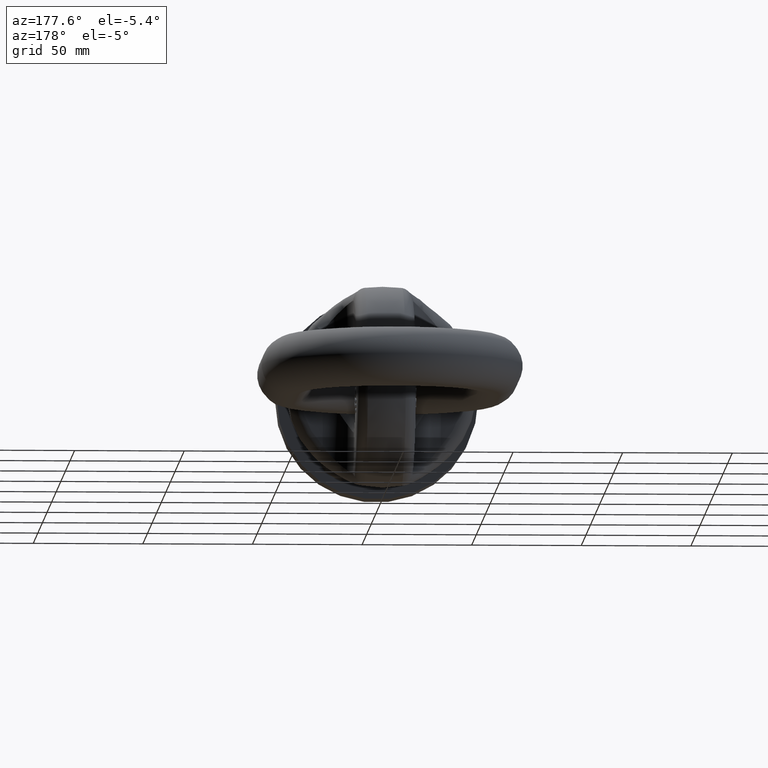
[diagram: clean part render]
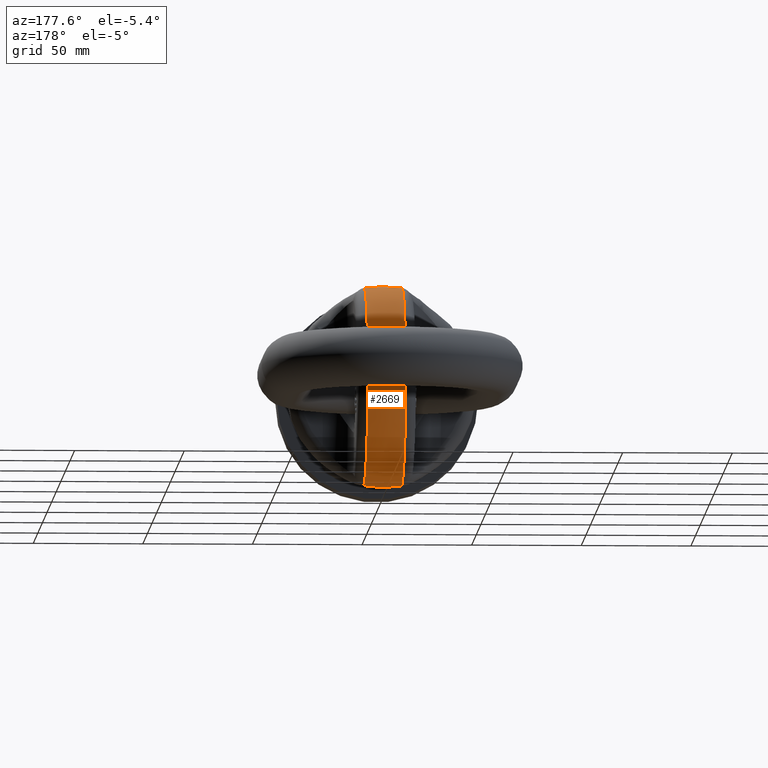
[diagram: same view with one face highlighted and labeled with its STEP entity id]
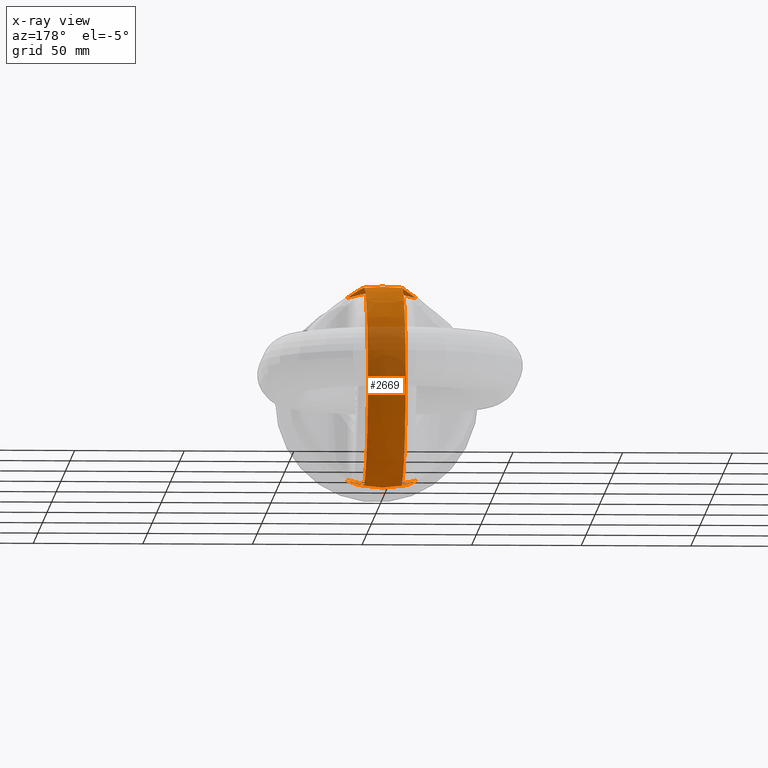
[diagram: x-ray of the same camera — body ghosted, the highlighted face saturated]
A machine part, auxiliary view. The second image highlights one B-rep face of the part: STEP entity #2669.
The next image is the same camera in x-ray: the body ghosted, the highlighted face saturated — about 29% of this face is hidden behind the body in this view.
In plain terms, the highlighted spherical surface has radius 46 mm.
Its self-contained STEP definition (entity closure, byte-faithful):
#315=SPHERICAL_SURFACE('',#5656,46.);
#357=B_SPLINE_CURVE_WITH_KNOTS('',3,(#7021,#7022,#7023,#7024,#7025,#7026),
 .UNSPECIFIED.,.F.,.F.,(4,2,4),(0.,0.5,1.),.UNSPECIFIED.);
#358=B_SPLINE_CURVE_WITH_KNOTS('',3,(#7030,#7031,#7032,#7033,#7034,#7035),
 .UNSPECIFIED.,.F.,.F.,(4,2,4),(0.,0.5,1.),.UNSPECIFIED.);
#359=B_SPLINE_CURVE_WITH_KNOTS('',3,(#7039,#7040,#7041,#7042,#7043,#7044),
 .UNSPECIFIED.,.F.,.F.,(4,2,4),(0.,0.5,1.),.UNSPECIFIED.);
#360=B_SPLINE_CURVE_WITH_KNOTS('',3,(#7048,#7049,#7050,#7051,#7052,#7053),
 .UNSPECIFIED.,.F.,.F.,(4,2,4),(0.,0.5,1.),.UNSPECIFIED.);
#1822=FACE_OUTER_BOUND('',#3104,.T.);
#2669=ADVANCED_FACE('',(#1822),#315,.T.);
#3104=EDGE_LOOP('',(#3521,#3522,#3523,#3524,#3525,#3526,#3527,#3528));
#3521=ORIENTED_EDGE('',*,*,#5066,.F.);
#3522=ORIENTED_EDGE('',*,*,#5067,.T.);
#3523=ORIENTED_EDGE('',*,*,#5068,.T.);
#3524=ORIENTED_EDGE('',*,*,#5069,.T.);
#3525=ORIENTED_EDGE('',*,*,#5070,.F.);
#3526=ORIENTED_EDGE('',*,*,#5071,.T.);
#3527=ORIENTED_EDGE('',*,*,#5072,.T.);
#3528=ORIENTED_EDGE('',*,*,#5073,.T.);
#4653=VERTEX_POINT('',#7019);
#4654=VERTEX_POINT('',#7020);
#4655=VERTEX_POINT('',#7027);
#4656=VERTEX_POINT('',#7029);
#4657=VERTEX_POINT('',#7036);
#4658=VERTEX_POINT('',#7038);
#4659=VERTEX_POINT('',#7045);
#4660=VERTEX_POINT('',#7047);
#5066=EDGE_CURVE('',#4653,#4654,#5561,.T.);
#5067=EDGE_CURVE('',#4653,#4655,#357,.T.);
#5068=EDGE_CURVE('',#4655,#4656,#5562,.T.);
#5069=EDGE_CURVE('',#4656,#4657,#358,.T.);
#5070=EDGE_CURVE('',#4658,#4657,#5563,.T.);
#5071=EDGE_CURVE('',#4658,#4659,#359,.T.);
#5072=EDGE_CURVE('',#4659,#4660,#5564,.T.);
#5073=EDGE_CURVE('',#4660,#4654,#360,.T.);
#5561=CIRCLE('',#5652,44.6040210296982);
#5562=CIRCLE('',#5653,45.1841717308174);
#5563=CIRCLE('',#5654,44.6040210296982);
#5564=CIRCLE('',#5655,45.1841717308174);
#5652=AXIS2_PLACEMENT_3D('',#7018,#5967,#5968);
#5653=AXIS2_PLACEMENT_3D('',#7028,#5969,#5970);
#5654=AXIS2_PLACEMENT_3D('',#7037,#5971,#5972);
#5655=AXIS2_PLACEMENT_3D('',#7046,#5973,#5974);
#5656=AXIS2_PLACEMENT_3D('',#7054,#5975,#5976);
#5967=DIRECTION('',(0.,-1.,0.));
#5968=DIRECTION('',(0.,0.,-1.));
#5969=DIRECTION('',(1.,3.46944695195361E-16,2.34291072916505E-15));
#5970=DIRECTION('',(3.4553054057961E-16,-1.,8.1838071864034E-31));
#5971=DIRECTION('',(0.,-1.,0.));
#5972=DIRECTION('',(0.,0.,-1.));
#5973=DIRECTION('',(-1.,3.46944695195361E-16,0.));
#5974=DIRECTION('',(-3.4553054057961E-16,-1.,0.));
#5975=DIRECTION('',(6.12323399573677E-17,-1.,0.));
#5976=DIRECTION('',(1.,0.,0.));
#7018=CARTESIAN_POINT('',(0.,62.7536091130426,0.));
#7019=CARTESIAN_POINT('',(-15.7785054320884,62.7536091130426,-41.7199887146116));
#7020=CARTESIAN_POINT('',(15.7785054320885,62.7536091130426,-41.7199887146116));
#7021=CARTESIAN_POINT('',(-15.7785054320884,62.7536091130426,-41.7199887146116));
#7022=CARTESIAN_POINT('',(-13.6645997934333,64.7194899997486,-43.0494074944425));
#7023=CARTESIAN_POINT('',(-11.8398754199306,67.1992902871253,-44.0390450207892));
#7024=CARTESIAN_POINT('',(-9.31533294389543,72.8464332215649,-45.14159550496));
#7025=CARTESIAN_POINT('',(-8.62499999999988,76.0102002256462,-45.2517133089261));
#7026=CARTESIAN_POINT('',(-8.62499999999988,79.175,-44.8868438409297));
#7027=CARTESIAN_POINT('',(-8.62499999999988,79.175,-44.8868438409297));
#7028=CARTESIAN_POINT('',(-8.62499999999999,74.,-2.02076050390485E-14));
#7029=CARTESIAN_POINT('',(-8.6250000000001,79.175,44.8868438409296));
#7030=CARTESIAN_POINT('',(-8.6250000000001,79.175,44.8868438409296));
#7031=CARTESIAN_POINT('',(-8.6250000000001,76.0052514425334,45.2522838536652));
#7032=CARTESIAN_POINT('',(-9.32268421481276,72.8256792035463,45.1389133638721));
#7033=CARTESIAN_POINT('',(-11.8429935052399,67.1966433800053,44.037152649885));
#7034=CARTESIAN_POINT('',(-13.6760137386568,64.7088753079922,43.0422293532547));
#7035=CARTESIAN_POINT('',(-15.7785054320886,62.7536091130426,41.7199887146115));
#7036=CARTESIAN_POINT('',(-15.7785054320886,62.7536091130426,41.7199887146115));
#7037=CARTESIAN_POINT('',(0.,62.7536091130426,0.));
#7038=CARTESIAN_POINT('',(15.7785054320885,62.7536091130426,41.7199887146116));
#7039=CARTESIAN_POINT('',(15.7785054320885,62.7536091130426,41.7199887146116));
#7040=CARTESIAN_POINT('',(13.6645997934334,64.7194899997486,43.0494074944424));
#7041=CARTESIAN_POINT('',(11.8398754199307,67.1992902871253,44.0390450207892));
#7042=CARTESIAN_POINT('',(9.31533294389554,72.8464332215649,45.14159550496));
#7043=CARTESIAN_POINT('',(8.62499999999999,76.0102002256462,45.2517133089261));
#7044=CARTESIAN_POINT('',(8.62499999999999,79.175,44.8868438409296));
#7045=CARTESIAN_POINT('',(8.62499999999999,79.175,44.8868438409296));
#7046=CARTESIAN_POINT('',(8.62499999999999,74.,0.));
#7047=CARTESIAN_POINT('',(8.62499999999999,79.175,-44.8868438409296));
#7048=CARTESIAN_POINT('',(8.625,79.175,-44.8868438409296));
#7049=CARTESIAN_POINT('',(8.62499999999999,76.0052514425334,-45.2522838536652));
#7050=CARTESIAN_POINT('',(9.32268421481267,72.8256792035463,-45.1389133638721));
#7051=CARTESIAN_POINT('',(11.8429935052398,67.1966433800053,-44.037152649885));
#7052=CARTESIAN_POINT('',(13.6760137386567,64.7088753079922,-43.0422293532547));
#7053=CARTESIAN_POINT('',(15.7785054320885,62.7536091130426,-41.7199887146116));
#7054=CARTESIAN_POINT('',(0.,74.,0.));